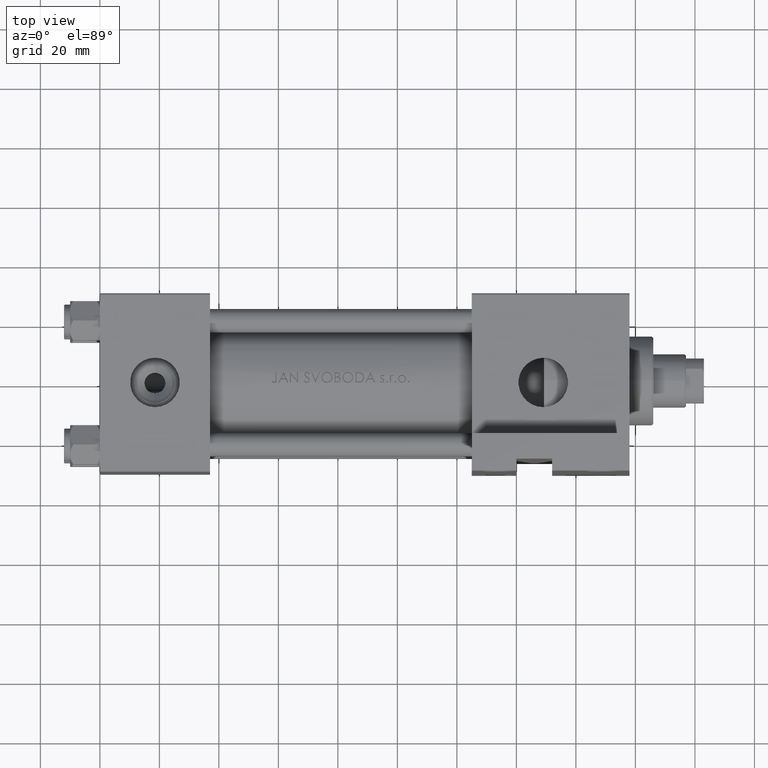
[diagram: clean part render]
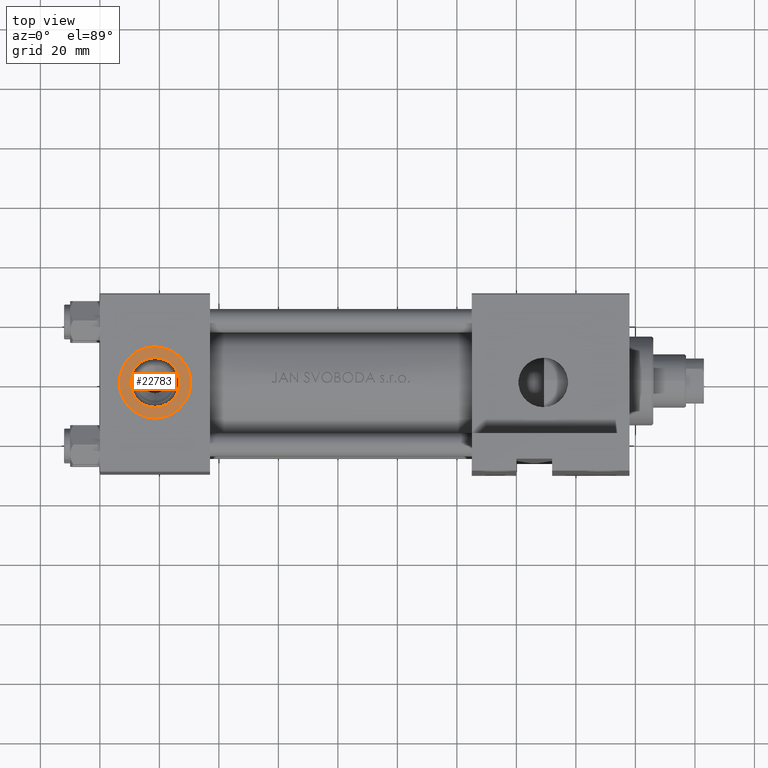
[diagram: same view with one face highlighted and labeled with its STEP entity id]
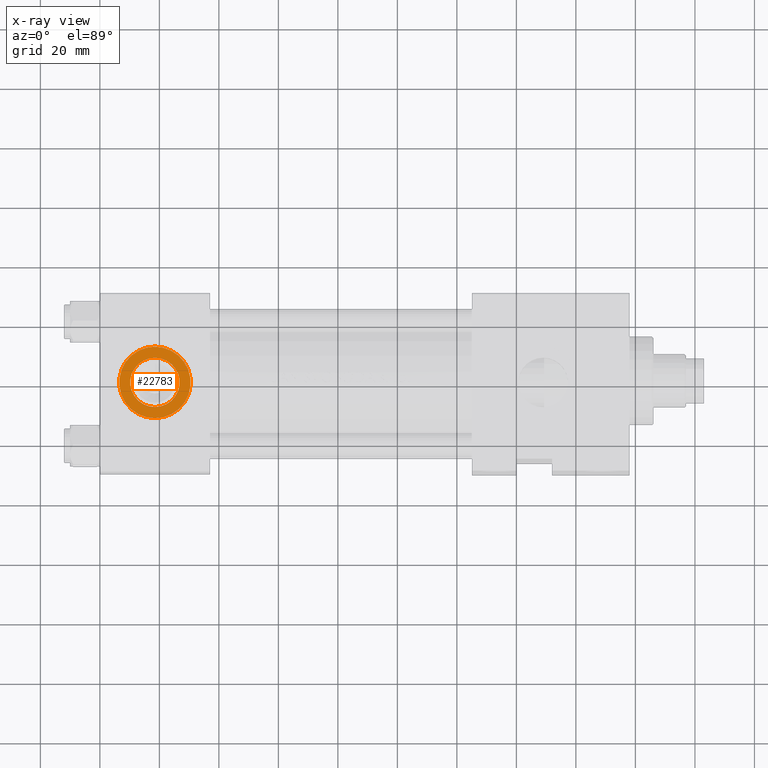
[diagram: x-ray of the same camera — body ghosted, the highlighted face saturated]
A machine part, top view. The second image highlights one B-rep face of the part: STEP entity #22783.
The next image is the same camera in x-ray: the body ghosted, the highlighted face saturated — about 0% of this face is hidden behind the body in this view.
In plain terms, the highlighted planar face has unit normal (0, -0, 1).
Its self-contained STEP definition (entity closure, byte-faithful):
#654 = FACE_BOUND ( 'NONE', #22992, .T. ) ;
#1690 = EDGE_CURVE ( 'NONE', #19727, #22322, #29526, .T. ) ;
#7812 = DIRECTION ( 'NONE',  ( 0.000000000000000000, -1.000000000000000000, -8.673617379884036705E-17 ) ) ;
#8276 = AXIS2_PLACEMENT_3D ( 'NONE', #8439, #19305, #34324 ) ;
#8439 = CARTESIAN_POINT ( 'NONE',  ( 18.50000000000000000, -29.80000000000000071, 1.734723475976808635E-17 ) ) ;
#9353 = ORIENTED_EDGE ( 'NONE', *, *, #1690, .F. ) ;
#9399 = CIRCLE ( 'NONE', #26700, 12.00000000000000178 ) ;
#9874 = DIRECTION ( 'NONE',  ( 0.000000000000000000, -1.000000000000000000, -8.673617379884036705E-17 ) ) ;
#10417 = CIRCLE ( 'NONE', #45841, 12.00000000000000178 ) ;
#11575 = ORIENTED_EDGE ( 'NONE', *, *, #30826, .F. ) ;
#12843 = VERTEX_POINT ( 'NONE', #25536 ) ;
#13882 = CARTESIAN_POINT ( 'NONE',  ( 18.50000000000000000, -29.80000000000000071, 8.330000000000001847 ) ) ;
#14969 = DIRECTION ( 'NONE',  ( 0.000000000000000000, 0.000000000000000000, -1.000000000000000000 ) ) ;
#15079 = CARTESIAN_POINT ( 'NONE',  ( 18.50000000000000000, -29.80000000000000071, -8.330000000000001847 ) ) ;
#15244 = AXIS2_PLACEMENT_3D ( 'NONE', #30722, #7812, #45770 ) ;
#15704 = FACE_OUTER_BOUND ( 'NONE', #32162, .T. ) ;
#19305 = DIRECTION ( 'NONE',  ( 0.000000000000000000, -1.000000000000000000, -8.673617379884036705E-17 ) ) ;
#19727 = VERTEX_POINT ( 'NONE', #15079 ) ;
#19769 = EDGE_CURVE ( 'NONE', #32576, #12843, #10417, .T. ) ;
#20902 = DIRECTION ( 'NONE',  ( 0.000000000000000000, 0.000000000000000000, -1.000000000000000000 ) ) ;
#22322 = VERTEX_POINT ( 'NONE', #13882 ) ;
#22359 = PLANE ( 'NONE',  #15244 ) ;
#22783 = ADVANCED_FACE ( 'NONE', ( #654, #15704 ), #22359, .T. ) ;
#22992 = EDGE_LOOP ( 'NONE', ( #9353, #11575 ) ) ;
#24082 = CARTESIAN_POINT ( 'NONE',  ( 18.50000000000000000, -29.80000000000000071, 1.734723475976807403E-17 ) ) ;
#24894 = DIRECTION ( 'NONE',  ( 0.000000000000000000, 0.000000000000000000, -1.000000000000000000 ) ) ;
#25536 = CARTESIAN_POINT ( 'NONE',  ( 18.50000000000000000, -29.80000000000000071, 12.00000000000000178 ) ) ;
#26528 = DIRECTION ( 'NONE',  ( 0.000000000000000000, -1.000000000000000000, -8.673617379884036705E-17 ) ) ;
#26700 = AXIS2_PLACEMENT_3D ( 'NONE', #48236, #26528, #14969 ) ;
#28281 = DIRECTION ( 'NONE',  ( 0.000000000000000000, -1.000000000000000000, -8.673617379884036705E-17 ) ) ;
#29526 = CIRCLE ( 'NONE', #8276, 8.330000000000001847 ) ;
#30722 = CARTESIAN_POINT ( 'NONE',  ( 18.50000000000000000, -29.80000000000000071, 1.734723475976807403E-17 ) ) ;
#30826 = EDGE_CURVE ( 'NONE', #22322, #19727, #48592, .T. ) ;
#32162 = EDGE_LOOP ( 'NONE', ( #33757, #33476 ) ) ;
#32576 = VERTEX_POINT ( 'NONE', #38051 ) ;
#33476 = ORIENTED_EDGE ( 'NONE', *, *, #39698, .T. ) ;
#33757 = ORIENTED_EDGE ( 'NONE', *, *, #19769, .T. ) ;
#34324 = DIRECTION ( 'NONE',  ( 0.000000000000000000, 0.000000000000000000, -1.000000000000000000 ) ) ;
#38051 = CARTESIAN_POINT ( 'NONE',  ( 18.50000000000000000, -29.80000000000000071, -12.00000000000000178 ) ) ;
#39698 = EDGE_CURVE ( 'NONE', #12843, #32576, #9399, .T. ) ;
#44654 = AXIS2_PLACEMENT_3D ( 'NONE', #48068, #9874, #24894 ) ;
#45770 = DIRECTION ( 'NONE',  ( 0.000000000000000000, 8.673617379884036705E-17, -1.000000000000000000 ) ) ;
#45841 = AXIS2_PLACEMENT_3D ( 'NONE', #24082, #28281, #20902 ) ;
#48068 = CARTESIAN_POINT ( 'NONE',  ( 18.50000000000000000, -29.80000000000000071, 1.734723475976808635E-17 ) ) ;
#48236 = CARTESIAN_POINT ( 'NONE',  ( 18.50000000000000000, -29.80000000000000071, 1.734723475976807403E-17 ) ) ;
#48592 = CIRCLE ( 'NONE', #44654, 8.330000000000001847 ) ;